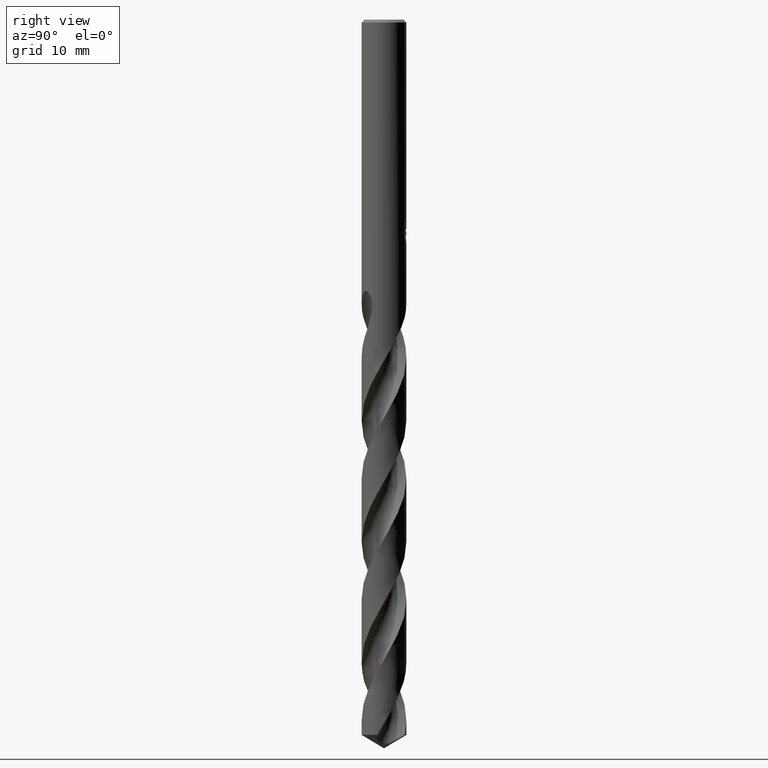
[diagram: clean part render]
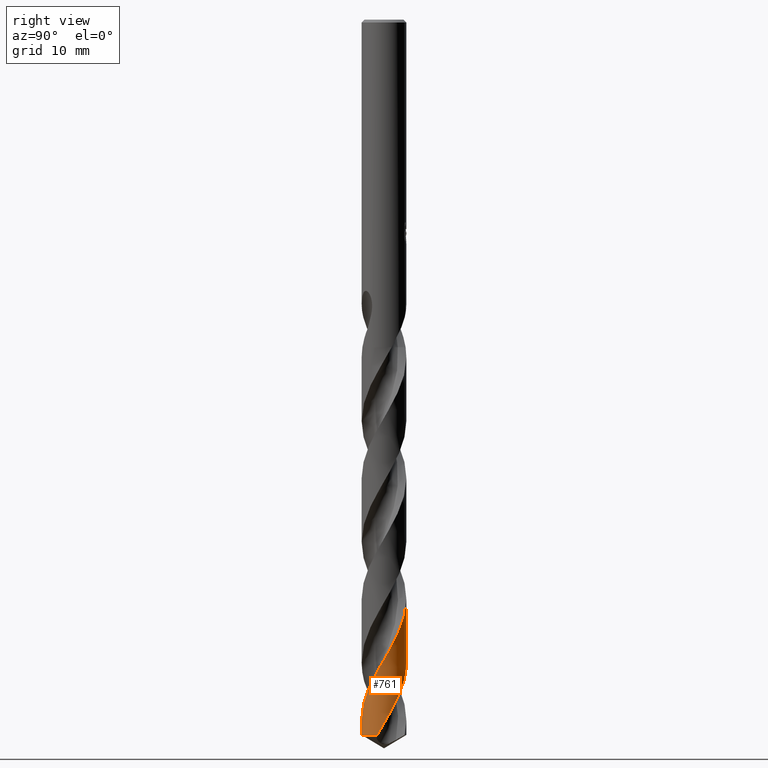
[diagram: same view with one face highlighted and labeled with its STEP entity id]
A machine part, right view. The second image highlights one B-rep face of the part: STEP entity #761.
In plain terms, the highlighted conical surface has half-angle 0 deg.
Its self-contained STEP definition (entity closure, byte-faithful):
#335=VERTEX_POINT('',#878);
#341=VERTEX_POINT('',#885);
#463=EDGE_CURVE('',#543,#335,#1018,.T.);
#465=EDGE_CURVE('',#341,#543,#1020,.T.);
#543=VERTEX_POINT('',#1103);
#589=VERTEX_POINT('',#1154);
#633=EDGE_CURVE('',#765,#335,#1200,.T.);
#673=EDGE_CURVE('',#341,#589,#1243,.T.);
#761=ADVANCED_FACE('',(#1341),#1342,.T.);
#765=VERTEX_POINT('',#1346);
#809=EDGE_CURVE('',#765,#589,#1396,.T.);
#878=CARTESIAN_POINT('',(1.77965526183685E-012,-3.09999615777495,-97.0726228446462));
#885=CARTESIAN_POINT('',(2.95963420843977,-0.922261000060777,-99.1373320810146));
#1018=LINE('',#5313,#5314);
#1020=CIRCLE('',#5317,3.1);
#1103=CARTESIAN_POINT('',(3.79627969684937E-016,-3.1,-99.1373320810146));
#1154=CARTESIAN_POINT('',(-3.29845309726225E-015,3.0999814068505,-89.1458695934188));
#1200=B_SPLINE_CURVE_WITH_KNOTS('',3,(#8628,#8629,#8630,#8631,#8632,#8633,#8634,#8635,#8636,#8637,#8638,#8639,#8640,#8641,#8642,#8643,#8644,#8645,#8646,#8647,#8648,#8649,#8650,#8651,#8652,#8653,#8654,#8655,#8656,#8657,#8658,#8659,#8660,#8661,#8662,#8663,#8664,#8665,#8666,#8667,#8668,#8669,#8670,#8671,#8672,#8673,#8674,#8675,#8676,#8677,#8678,#8679,#8680,#8681,#8682,#8683,#8684,#8685,#8686,#8687,#8688,#8689,#8690,#8691,#8692,#8693,#8694,#8695,#8696,#8697,#8698,#8699,#8700,#8701,#8702,#8703,#8704,#8705,#8706,#8707,#8708,#8709,#8710,#8711,#8712,#8713,#8714,#8715,#8716,#8717,#8718,#8719,#8720,#8721,#8722,#8723,#8724,#8725,#8726,#8727,#8728,#8729,#8730,#8731,#8732,#8733,#8734,#8735,#8736,#8737,#8738,#8739,#8740,#8741,#8742,#8743,#8744,#8745,#8746,#8747,#8748,#8749),.UNSPECIFIED.,.F.,.F.,(4,2,2,2,2,2,2,2,2,2,2,2,2,2,2,2,2,2,2,2,2,2,2,2,2,2,2,2,2,2,2,2,2,2,2,2,2,2,2,2,2,2,2,2,2,2,2,2,2,2,2,2,2,2,2,2,2,2,2,2,4),(0.0,0.060506131955498,0.65863263093856,1.71654035191651,3.02313976781123,3.33391051796659,4.35969975199793,4.95810856472654,5.58117716569292,6.64408985049069,7.83177824617176,9.29642217437958,9.87114267123397,11.182940099216,12.4301589674003,13.6072238226016,13.8728113881637,14.8724310445469,15.470786448715,16.1576803209329,17.3988130831858,18.2965226322941,19.5929501983597,20.3723488076861,21.6085637475459,22.515961991204,23.8125090140839,24.5908155832176,25.833086295099,26.7262650891694,28.0191940560933,28.8034084155651,30.0389739144062,30.9462935460853,32.2442984547946,33.0188972298283,34.2598054155209,35.1546499853136,36.4479540927449,37.2299686836224,38.4634862709973,39.3744176080609,40.6764875392884,41.9232075384595,43.0978956406625,43.3658312833164,45.3250391569788,45.3858935032299,47.1858134598638,47.7892771108387,49.0708942726636,49.8729191157139,51.1205933544538,51.9950739004344,53.2711975534111,54.081171021367,55.3258630624169,56.165226270658,57.257940417038,58.4720266366726,62.150866928561),.UNSPECIFIED.);
#1243=B_SPLINE_CURVE_WITH_KNOTS('',3,(#9249,#9250,#9251,#9252,#9253,#9254,#9255,#9256,#9257,#9258,#9259,#9260,#9261,#9262,#9263,#9264,#9265,#9266,#9267,#9268,#9269,#9270,#9271,#9272,#9273,#9274,#9275,#9276,#9277,#9278,#9279,#9280,#9281,#9282,#9283,#9284,#9285,#9286,#9287,#9288,#9289,#9290,#9291,#9292,#9293,#9294,#9295,#9296,#9297,#9298,#9299,#9300,#9301,#9302,#9303,#9304,#9305,#9306,#9307,#9308,#9309,#9310,#9311,#9312,#9313,#9314,#9315,#9316,#9317,#9318,#9319,#9320,#9321,#9322,#9323,#9324,#9325,#9326,#9327,#9328,#9329,#9330,#9331,#9332,#9333,#9334,#9335,#9336,#9337,#9338,#9339,#9340,#9341,#9342,#9343,#9344,#9345,#9346,#9347,#9348,#9349,#9350,#9351,#9352,#9353,#9354,#9355,#9356,#9357,#9358,#9359,#9360,#9361,#9362,#9363,#9364,#9365,#9366,#9367,#9368,#9369,#9370,#9371,#9372,#9373,#9374,#9375,#9376,#9377,#9378,#9379,#9380,#9381,#9382,#9383,#9384,#9385,#9386,#9387,#9388,#9389,#9390,#9391,#9392,#9393,#9394,#9395,#9396),.UNSPECIFIED.,.F.,.F.,(4,2,2,2,2,2,2,2,2,2,2,2,2,2,2,2,2,2,2,2,2,2,2,2,2,2,2,2,2,2,2,2,2,2,2,2,2,2,2,2,2,2,2,2,2,2,2,2,2,2,2,2,2,2,2,2,2,2,2,2,2,2,2,2,2,2,2,2,2,2,2,2,2,4),(0.0,1.09220484206867,1.61940484257514,2.65957104861981,3.84132351191601,4.3411164414289,5.51302304708856,7.27431135834343,7.87138222998789,8.13375630040645,8.60109015567383,9.72355251480752,11.5026094242518,12.1003057409239,12.3622042455678,12.8308837033898,13.9419191898708,14.4708223124515,14.9438098138587,16.1438942419586,17.1991408918159,18.8598670904626,19.2045496485996,20.3596172841036,20.8891561452903,21.3404353364308,22.4611596121828,22.991058697138,23.4515799309393,24.6132382543287,25.143392079691,25.591452194233,26.7221080801939,28.4771667889509,29.0775019050334,30.1066093012084,31.1266359028114,32.0026697125772,33.8008352128204,33.9569739932442,35.0330057230993,35.549276831937,36.3731964785191,37.4271295008654,37.9244595120639,38.3693337223324,39.5782543812396,40.5601549105438,41.5047502484215,41.9871332307609,42.9950936344205,44.1885138372628,44.7033456779485,45.8922363817892,47.6735764759194,48.277504191774,48.5428651347781,49.0132365105865,50.15748857609,51.9533331207832,52.5579331296495,53.6256034830827,55.0900580185428,55.4457222812782,56.6485089803203,57.6960827306477,58.9377153100825,59.8869860281048,61.3161555513256,62.0286419462188,62.3901563376374,62.5708753219254,62.6611134256654,62.7513553392391),.UNSPECIFIED.);
#1341=FACE_OUTER_BOUND('',#12073,.T.);
#1342=CONICAL_SURFACE('',#12074,3.09995,1.86090369818389E-006);
#1346=CARTESIAN_POINT('',(1.27929909419588E-013,3.09996497451355,-80.3155701096056));
#1396=LINE('',#14638,#14639);
#5313=CARTESIAN_POINT('',(3.79590282785587E-016,-3.09995,-72.2686660405073));
#5314=VECTOR('',#14969,1.0);
#5317=AXIS2_PLACEMENT_3D('',#14970,#14971,#14972);
#8628=CARTESIAN_POINT('',(-0.802706618069441,2.99416802248641,-45.4044701045762));
#8629=CARTESIAN_POINT('',(-0.792909520492816,2.99679456033113,-45.4219026909414));
#8630=CARTESIAN_POINT('',(-0.783099011453068,2.99937314931533,-45.4393320716715));
#8631=CARTESIAN_POINT('',(-0.676175685064954,3.02691646532043,-45.6290562352304));
#8632=CARTESIAN_POINT('',(-0.577939490218583,3.04719807712101,-45.8011514692261));
#8633=CARTESIAN_POINT('',(-0.303771444761752,3.09007096774963,-46.278254351839));
#8634=CARTESIAN_POINT('',(-0.12670942281363,3.10236834050888,-46.5832513036864));
#8635=CARTESIAN_POINT('',(0.26898586400158,3.0959443572038,-47.2645896682064));
#8636=CARTESIAN_POINT('',(0.48670995801499,3.06926658952671,-47.6392489675438));
#8637=CARTESIAN_POINT('',(0.750570961756927,3.00811618380898,-48.1052010816916));
#8638=CARTESIAN_POINT('',(0.800952152626527,2.99509495468321,-48.1947101950449));
#8639=CARTESIAN_POINT('',(1.01607672816995,2.93368130381992,-48.5798509186909));
#8640=CARTESIAN_POINT('',(1.17701600014156,2.87290024619255,-48.8752475617862));
#8641=CARTESIAN_POINT('',(1.4225876596553,2.75603155395277,-49.3432550035438));
#8642=CARTESIAN_POINT('',(1.51095098871396,2.70859873635282,-49.5155349644041));
#8643=CARTESIAN_POINT('',(1.68636334599465,2.60317273871106,-49.8674232168771));
#8644=CARTESIAN_POINT('',(1.7730308887997,2.54493208821284,-50.0466847609195));
#8645=CARTESIAN_POINT('',(1.9991037963478,2.37585744839798,-50.532546807772));
#8646=CARTESIAN_POINT('',(2.13221268839626,2.25716801577398,-50.8385697613775));
#8647=CARTESIAN_POINT('',(2.39095187549787,1.9830212605661,-51.4871174897067));
#8648=CARTESIAN_POINT('',(2.51321335628048,1.82558184360469,-51.8281246670846));
#8649=CARTESIAN_POINT('',(2.75064832361008,1.45035228412139,-52.5925949267497));
#8650=CARTESIAN_POINT('',(2.85677761964312,1.22821976612567,-53.0133577381176));
#8651=CARTESIAN_POINT('',(2.96655468716228,0.904600725883291,-53.6009863635032));
#8652=CARTESIAN_POINT('',(2.99321154238085,0.812047875426184,-53.7664567864742));
#8653=CARTESIAN_POINT('',(3.06642095232863,0.504768151711967,-54.310223744361));
#8654=CARTESIAN_POINT('',(3.09449429746666,0.286203346519562,-54.6875145209025));
#8655=CARTESIAN_POINT('',(3.10368575959885,-0.14251357444501,-55.4249704657648));
#8656=CARTESIAN_POINT('',(3.08702081117719,-0.351303504642011,-55.7835335627149));
#8657=CARTESIAN_POINT('',(3.01411885969063,-0.750625737450825,-56.4823580202809));
#8658=CARTESIAN_POINT('',(2.96029882801182,-0.940771999692594,-56.8207186352844));
#8659=CARTESIAN_POINT('',(2.87259316863671,-1.16606431417315,-57.2364449433874));
#8660=CARTESIAN_POINT('',(2.85555995281801,-1.20717618768185,-57.3129487251658));
#8661=CARTESIAN_POINT('',(2.77023753247185,-1.40119530030122,-57.6776313979432));
#8662=CARTESIAN_POINT('',(2.6905138538523,-1.54877319175551,-57.9656441901912));
#8663=CARTESIAN_POINT('',(2.5446552063495,-1.77321919635798,-58.4262970471439));
#8664=CARTESIAN_POINT('',(2.48598066890091,-1.85458604319274,-58.5986483282753));
#8665=CARTESIAN_POINT('',(2.35166148147439,-2.02298746564671,-58.9690809802717));
#8666=CARTESIAN_POINT('',(2.27494625005592,-2.10888468033079,-59.1667749535574));
#8667=CARTESIAN_POINT('',(2.04677778118446,-2.33740444885649,-59.722641029283));
#8668=CARTESIAN_POINT('',(1.88541887923193,-2.46941596297421,-60.0798575182116));
#8669=CARTESIAN_POINT('',(1.58657469834234,-2.66739094894967,-60.6964095521496));
#8670=CARTESIAN_POINT('',(1.45530579651344,-2.74121425925876,-60.954587622072));
#8671=CARTESIAN_POINT('',(1.12272178865765,-2.89762309629616,-61.5872487906328));
#8672=CARTESIAN_POINT('',(0.916962265350516,-2.969171465351,-61.9602897056428));
#8673=CARTESIAN_POINT('',(0.578119559750873,-3.04834795882816,-62.5587205758156));
#8674=CARTESIAN_POINT('',(0.449191133334663,-3.06999297255668,-62.7829967284858));
#8675=CARTESIAN_POINT('',(0.113314218077698,-3.1047766760573,-63.3642360846276));
#8676=CARTESIAN_POINT('',(-0.0943799359752034,-3.105419476528,-63.7201203145042));
#8677=CARTESIAN_POINT('',(-0.452034285680753,-3.07057029547319,-64.3381789781988));
#8678=CARTESIAN_POINT('',(-0.602085910922482,-3.04470120074222,-64.5991871457965));
#8679=CARTESIAN_POINT('',(-0.960373837513428,-2.9554147121217,-65.2348136325444));
#8680=CARTESIAN_POINT('',(-1.16513163743668,-2.88085707532121,-65.6079684872303));
#8681=CARTESIAN_POINT('',(-1.4777191873068,-2.72818525713895,-66.2062481226964));
#8682=CARTESIAN_POINT('',(-1.59119902396671,-2.663590897819,-66.4302605237002));
#8683=CARTESIAN_POINT('',(-1.87430329728241,-2.47789154254678,-67.0130573451244));
#8684=CARTESIAN_POINT('',(-2.03648024837598,-2.34643745379696,-67.3707496012092));
#8685=CARTESIAN_POINT('',(-2.2905530354348,-2.09414328519498,-67.9865843551085));
#8686=CARTESIAN_POINT('',(-2.38899890862833,-1.98109328025661,-68.2435724123282));
#8687=CARTESIAN_POINT('',(-2.60897397013538,-1.68814961062856,-68.8741855347347));
#8688=CARTESIAN_POINT('',(-2.72060412754624,-1.50165968986348,-69.2463845341333));
#8689=CARTESIAN_POINT('',(-2.86724561400274,-1.18568989378442,-69.8454502333633));
#8690=CARTESIAN_POINT('',(-2.91494210326962,-1.06303915846186,-70.0712030990206));
#8691=CARTESIAN_POINT('',(-3.01734738358341,-0.740384225428706,-70.6538918124378));
#8692=CARTESIAN_POINT('',(-3.06007840225791,-0.537153202304893,-71.0097407722339));
#8693=CARTESIAN_POINT('',(-3.09846705805657,-0.179829672422068,-71.6278525526117));
#8694=CARTESIAN_POINT('',(-3.10355459432093,-0.0275973143561963,-71.8889492924582));
#8695=CARTESIAN_POINT('',(-3.08872766082618,0.341740023717188,-72.5252441515364));
#8696=CARTESIAN_POINT('',(-3.05713600001861,0.557691673579839,-72.8989727726374));
#8697=CARTESIAN_POINT('',(-2.97093880736879,0.894487674099713,-73.4968570697848));
#8698=CARTESIAN_POINT('',(-2.93085511634703,1.01816307525591,-73.7198999838116));
#8699=CARTESIAN_POINT('',(-2.80672178820864,1.33240328038469,-74.3014810775734));
#8700=CARTESIAN_POINT('',(-2.71098611200557,1.51776182984151,-74.6589344723392));
#8701=CARTESIAN_POINT('',(-2.51542268388657,1.81793982035962,-75.2751184451404));
#8702=CARTESIAN_POINT('',(-2.42448744670124,1.93754846480666,-75.5326930000505));
#8703=CARTESIAN_POINT('',(-2.1818882215944,2.21271547905042,-76.164162958437));
#8704=CARTESIAN_POINT('',(-2.02177269283962,2.35992706158986,-76.5366256665039));
#8705=CARTESIAN_POINT('',(-1.74218413671919,2.56744121544662,-77.1354190419841));
#8706=CARTESIAN_POINT('',(-1.63201192513057,2.63884043696372,-77.3606356950088));
#8707=CARTESIAN_POINT('',(-1.33733513015785,2.80429447488717,-77.9423462498828));
#8708=CARTESIAN_POINT('',(-1.14724431784369,2.88728630184593,-78.2977598795058));
#8709=CARTESIAN_POINT('',(-0.804770340853619,2.99757738818978,-78.9165865360342));
#8710=CARTESIAN_POINT('',(-0.656078292059747,3.03358904449151,-79.1788306203907));
#8711=CARTESIAN_POINT('',(-0.289963153023862,3.09408595186387,-79.8176122696574));
#8712=CARTESIAN_POINT('',(-0.0713025419231356,3.10683751948047,-80.1926596046393));
#8713=CARTESIAN_POINT('',(0.355927308907154,3.08656362099483,-80.9282201007224));
#8714=CARTESIAN_POINT('',(0.563286622359553,3.05552023719995,-81.2871316993652));
#8715=CARTESIAN_POINT('',(0.956721792988229,2.95521288295043,-81.9861256395468));
#8716=CARTESIAN_POINT('',(1.14259569637083,2.88845035767984,-82.3242949910573));
#8717=CARTESIAN_POINT('',(1.36162224405712,2.7852859140672,-82.7406063471788));
#8718=CARTESIAN_POINT('',(1.40186947857389,2.76524759564063,-82.8178952883609));
#8719=CARTESIAN_POINT('',(1.73264858526298,2.5914834052905,-83.4607550931157));
#8720=CARTESIAN_POINT('',(1.99759175948037,2.39324020495775,-84.0233946215412));
#8721=CARTESIAN_POINT('',(2.23352763223923,2.14971881904536,-84.6064696006361));
#8722=CARTESIAN_POINT('',(2.2405979635434,2.14234862754596,-84.6240330188859));
#8723=CARTESIAN_POINT('',(2.45568999834941,1.9159047882661,-85.16120916071));
#8724=CARTESIAN_POINT('',(2.63068308589955,1.66753830454421,-85.67913905541));
#8725=CARTESIAN_POINT('',(2.81264063834293,1.30735300220724,-86.3730433826282));
#8726=CARTESIAN_POINT('',(2.85384767961894,1.21476736391695,-86.5471045851384));
#8727=CARTESIAN_POINT('',(2.96815593196228,0.919864160575374,-87.0915453776623));
#8728=CARTESIAN_POINT('',(3.0248293890402,0.711743469664785,-87.4609622559014));
#8729=CARTESIAN_POINT('',(3.0811870106115,0.36646018332574,-88.062639176242));
#8730=CARTESIAN_POINT('',(3.09418966067045,0.232331519992203,-88.2937856565467));
#8731=CARTESIAN_POINT('',(3.10504354016336,-0.111446043096103,-88.8858278374276));
#8732=CARTESIAN_POINT('',(3.09043538461442,-0.320917036976919,-89.2455736298393));
#8733=CARTESIAN_POINT('',(3.02981486141988,-0.67206913717208,-89.8584464875095));
#8734=CARTESIAN_POINT('',(2.99459482644209,-0.814760536042807,-90.1104303490348));
#8735=CARTESIAN_POINT('',(2.8834818920484,-1.1581447031824,-90.7316876541344));
#8736=CARTESIAN_POINT('',(2.79658528837015,-1.3546027096369,-91.0996081897887));
#8737=CARTESIAN_POINT('',(2.62247911227143,-1.65862026071519,-91.7021208435156));
#8738=CARTESIAN_POINT('',(2.54720768472676,-1.77204161032264,-91.9355967904858));
#8739=CARTESIAN_POINT('',(2.33805376782012,-2.04623359849817,-92.5291995787067));
#8740=CARTESIAN_POINT('',(2.1948374090089,-2.19916280648108,-92.8881703278091));
#8741=CARTESIAN_POINT('',(1.93102027836757,-2.42919090228375,-93.4901727297226));
#8742=CARTESIAN_POINT('',(1.81860600839849,-2.51445061682813,-93.7321121088707));
#8743=CARTESIAN_POINT('',(1.54745565537295,-2.69239112655783,-94.2903529194659));
#8744=CARTESIAN_POINT('',(1.38542851490716,-2.77924719700152,-94.605714972971));
#8745=CARTESIAN_POINT('',(1.02908949565371,-2.93129783272459,-95.2721532200837));
#8746=CARTESIAN_POINT('',(0.834176081613365,-2.99259627789956,-95.6216084604457));
#8747=CARTESIAN_POINT('',(0.0303493364957913,-3.16074423670839,-97.0355694360789));
#8748=CARTESIAN_POINT('',(-0.598487164562906,-3.10381419242127,-98.0747496215162));
#8749=CARTESIAN_POINT('',(-1.17068018211897,-2.87045430397244,-99.1373320810146));
#9249=CARTESIAN_POINT('',(2.95963420843977,-0.922261000060784,-99.1373320810146));
#9250=CARTESIAN_POINT('',(3.01374764200359,-0.748603230266731,-98.8219586066983));
#9251=CARTESIAN_POINT('',(3.05264100032437,-0.569994763401178,-98.5086065610218));
#9252=CARTESIAN_POINT('',(3.08664666044097,-0.300681387906761,-98.0421892665719));
#9253=CARTESIAN_POINT('',(3.09395952224211,-0.21260111063291,-97.8905541682616));
#9254=CARTESIAN_POINT('',(3.10449129045387,0.0497414893016859,-97.4390305880019));
#9255=CARTESIAN_POINT('',(3.09679872947348,0.224081637278233,-97.1383975689956));
#9256=CARTESIAN_POINT('',(3.04910249867223,0.593447749087161,-96.4983277838922));
#9257=CARTESIAN_POINT('',(3.00498140560717,0.786869004119283,-96.1600556702684));
#9258=CARTESIAN_POINT('',(2.91651055593255,1.05400272838362,-95.6754559676567));
#9259=CARTESIAN_POINT('',(2.88705562097778,1.13217553776643,-95.5310717667171));
#9260=CARTESIAN_POINT('',(2.77828414216573,1.38899925543644,-95.0498441109748));
#9261=CARTESIAN_POINT('',(2.68505826609825,1.56169611282548,-94.7147927391031));
#9262=CARTESIAN_POINT('',(2.41188240545784,1.96969257471844,-93.8716329302615));
#9263=CARTESIAN_POINT('',(2.2138042409091,2.18996208159764,-93.3643306563568));
#9264=CARTESIAN_POINT('',(1.91083511715907,2.44307686839985,-92.6865170373745));
#9265=CARTESIAN_POINT('',(1.83111694884452,2.50337836226016,-92.5151854183699));
#9266=CARTESIAN_POINT('',(1.71244557404574,2.58444886432101,-92.2680894875591));
#9267=CARTESIAN_POINT('',(1.67572506840528,2.60840644778183,-92.1926615340628));
#9268=CARTESIAN_POINT('',(1.57230609342406,2.67279977428426,-91.9827512643473));
#9269=CARTESIAN_POINT('',(1.50464663343751,2.71146154629956,-91.8480261285401));
#9270=CARTESIAN_POINT('',(1.26975435093377,2.83419255465623,-91.3909471231613));
#9271=CARTESIAN_POINT('',(1.09617542880243,2.90577582032378,-91.0702346510586));
#9272=CARTESIAN_POINT('',(0.632716137272038,3.04927214094142,-90.2371064422985));
#9273=CARTESIAN_POINT('',(0.337448512803226,3.09588774269531,-89.7252698465885));
#9274=CARTESIAN_POINT('',(-0.0599555012304675,3.10101242329539,-89.0429172524317));
#9275=CARTESIAN_POINT('',(-0.159846634634272,3.09746659562123,-88.87159488007));
#9276=CARTESIAN_POINT('',(-0.302935959556409,3.08545337364609,-88.6247283790109));
#9277=CARTESIAN_POINT('',(-0.346414726105063,3.08087367013278,-88.5495202259511));
#9278=CARTESIAN_POINT('',(-0.467293579973847,3.06555412700605,-88.3395924184483));
#9279=CARTESIAN_POINT('',(-0.544316791481683,3.0528157594266,-88.2046284441868));
#9280=CARTESIAN_POINT('',(-0.802042863838434,3.00013742425958,-87.7509589211034));
#9281=CARTESIAN_POINT('',(-0.979880213086137,2.94688626008384,-87.4338235367975));
#9282=CARTESIAN_POINT('',(-1.23417808360871,2.84507794441046,-86.9634681281854));
#9283=CARTESIAN_POINT('',(-1.31465156610791,2.8087925281549,-86.8119254527637));
#9284=CARTESIAN_POINT('',(-1.46377523245448,2.7337570540557,-86.5243321918217));
#9285=CARTESIAN_POINT('',(-1.53268655309247,2.69572134229279,-86.3882623928598));
#9286=CARTESIAN_POINT('',(-1.77102255641868,2.55209071040508,-85.9083196005568));
#9287=CARTESIAN_POINT('',(-1.93185272029413,2.43266482716614,-85.5664765593285));
#9288=CARTESIAN_POINT('',(-2.210760458966,2.18021913985039,-84.9203348984429));
#9289=CARTESIAN_POINT('',(-2.33078523803721,2.0513545489444,-84.6169982172741));
#9290=CARTESIAN_POINT('',(-2.60949443250397,1.69605564310116,-83.8390456215706));
#9291=CARTESIAN_POINT('',(-2.74997758358061,1.45720823290264,-83.369552887858));
#9292=CARTESIAN_POINT('',(-2.87918821129244,1.15037435120447,-82.7951104151935));
#9293=CARTESIAN_POINT('',(-2.89991642729342,1.09707728123845,-82.6962420423632));
#9294=CARTESIAN_POINT('',(-2.98381258609596,0.862288588037777,-82.2662665409092));
#9295=CARTESIAN_POINT('',(-3.03157408637658,0.675609915378935,-81.9372682627424));
#9296=CARTESIAN_POINT('',(-3.07555320812007,0.398200394755699,-81.4549055666638));
#9297=CARTESIAN_POINT('',(-3.0856272870151,0.310566486719743,-81.3034271696622));
#9298=CARTESIAN_POINT('',(-3.09734530244483,0.147898093710408,-81.0223263518132));
#9299=CARTESIAN_POINT('',(-3.10001388724669,0.0729908186126094,-80.892730321951));
#9300=CARTESIAN_POINT('',(-3.09984414891384,-0.188249820651723,-80.4422691649168));
#9301=CARTESIAN_POINT('',(-3.08294170480004,-0.374350010089255,-80.1230971297208));
#9302=CARTESIAN_POINT('',(-3.03341649070111,-0.644948662586904,-79.6506882108361));
#9303=CARTESIAN_POINT('',(-3.01383310474561,-0.730987168047225,-79.499180904765));
#9304=CARTESIAN_POINT('',(-2.97049761450123,-0.889816950950219,-79.2154725776008));
#9305=CARTESIAN_POINT('',(-2.94765388602314,-0.962783416800692,-79.0832793942691));
#9306=CARTESIAN_POINT('',(-2.85773838595036,-1.2166745023487,-78.6187868361579));
#9307=CARTESIAN_POINT('',(-2.77644020347812,-1.39232014928917,-78.2883466347265));
#9308=CARTESIAN_POINT('',(-2.63471960794842,-1.6357871145389,-77.8045232635889));
#9309=CARTESIAN_POINT('',(-2.58713175515091,-1.7100443441452,-77.6530566226298));
#9310=CARTESIAN_POINT('',(-2.49374985834206,-1.84295859752943,-77.3730462924696));
#9311=CARTESIAN_POINT('',(-2.44886325782155,-1.90219543191564,-77.2445359596938));
#9312=CARTESIAN_POINT('',(-2.2831934742254,-2.105229658627,-76.7926737388433));
#9313=CARTESIAN_POINT('',(-2.15143116311467,-2.23975567838839,-76.4710751230145));
#9314=CARTESIAN_POINT('',(-1.78547346154154,-2.55091443674807,-75.6461343858936));
#9315=CARTESIAN_POINT('',(-1.53734445582166,-2.70770395636839,-75.143358226416));
#9316=CARTESIAN_POINT('',(-1.179694388347,-2.86845337067354,-74.4701353520983));
#9317=CARTESIAN_POINT('',(-1.08665392910384,-2.90497247393932,-74.2988201122225));
#9318=CARTESIAN_POINT('',(-0.829912312368283,-2.99169622996057,-73.8329415890355));
#9319=CARTESIAN_POINT('',(-0.66369935341013,-3.03289452136938,-73.5375162487527));
#9320=CARTESIAN_POINT('',(-0.327572925923413,-3.08725144040308,-72.9516550957095));
#9321=CARTESIAN_POINT('',(-0.158257903372957,-3.10055229343026,-72.6614951479));
#9322=CARTESIAN_POINT('',(0.157060694822917,-3.09939428977994,-72.1196354885607));
#9323=CARTESIAN_POINT('',(0.302319025800224,-3.08858511992547,-71.8684521973523));
#9324=CARTESIAN_POINT('',(0.740807388066429,-3.02483915693766,-71.1046520970628));
#9325=CARTESIAN_POINT('',(1.02762219206748,-2.93974943809083,-70.5988381679382));
#9326=CARTESIAN_POINT('',(1.32118725416191,-2.80442427895655,-70.0406501746228));
#9327=CARTESIAN_POINT('',(1.34447475538888,-2.79333475972241,-69.9960565783748));
#9328=CARTESIAN_POINT('',(1.52746653204377,-2.70337105580797,-69.6439617964173));
#9329=CARTESIAN_POINT('',(1.680512613538,-2.61103543143008,-69.3382152002158));
#9330=CARTESIAN_POINT('',(1.89439451636711,-2.45525567607918,-68.8839627432613));
#9331=CARTESIAN_POINT('',(1.96156400080243,-2.40192721487618,-68.7368388138354));
#9332=CARTESIAN_POINT('',(2.12985080470413,-2.25656170038918,-68.354320562245));
#9333=CARTESIAN_POINT('',(2.22714354290747,-2.16058125892619,-68.1182961456891));
#9334=CARTESIAN_POINT('',(2.43376194110734,-1.92793542955809,-67.582425533936));
#9335=CARTESIAN_POINT('',(2.53858147644696,-1.78769237263716,-67.2832975375562));
#9336=CARTESIAN_POINT('',(2.67474570490262,-1.56913293914121,-66.8409818405892));
#9337=CARTESIAN_POINT('',(2.71552386654347,-1.49744261020075,-66.6992895079935));
#9338=CARTESIAN_POINT('',(2.78719057021376,-1.35890226018681,-66.430388796137));
#9339=CARTESIAN_POINT('',(2.81864670421654,-1.29239128737409,-66.3031767060186));
#9340=CARTESIAN_POINT('',(2.92680599285642,-1.04089904510642,-65.8311591906107));
#9341=CARTESIAN_POINT('',(2.98797456738558,-0.849629318671365,-65.4885483172089));
#9342=CARTESIAN_POINT('',(3.06462039438686,-0.494225701832906,-64.8639774407249));
#9343=CARTESIAN_POINT('',(3.08630521958354,-0.332693116975436,-64.58312943769));
#9344=CARTESIAN_POINT('',(3.10383306313103,-0.0146089891711646,-64.0341285863057));
#9345=CARTESIAN_POINT('',(3.10063929001537,0.141976176466466,-63.766129577005));
#9346=CARTESIAN_POINT('',(3.07790386915898,0.377481148575121,-63.3599112544643));
#9347=CARTESIAN_POINT('',(3.06714645842458,0.456698895960435,-63.2227112708685));
#9348=CARTESIAN_POINT('',(3.02454277033753,0.699684972673842,-62.7982155291039));
#9349=CARTESIAN_POINT('',(2.98252865753916,0.861383032778292,-62.5099495612478));
#9350=CARTESIAN_POINT('',(2.86264474026469,1.20578580462496,-61.8828737882032));
#9351=CARTESIAN_POINT('',(2.77996896965695,1.38576364504846,-61.5451508206937));
#9352=CARTESIAN_POINT('',(2.63802517589734,1.63022761710949,-61.0584559073699));
#9353=CARTESIAN_POINT('',(2.59229417855082,1.70199369208724,-60.9114183817286));
#9354=CARTESIAN_POINT('',(2.43166741712051,1.9326175146401,-60.4265528198642));
#9355=CARTESIAN_POINT('',(2.30439905456942,2.08278780476587,-60.0904988081963));
#9356=CARTESIAN_POINT('',(1.95236405822229,2.42584381396408,-59.2463695750933));
#9357=CARTESIAN_POINT('',(1.71304532410192,2.60036967314996,-58.7391019331414));
#9358=CARTESIAN_POINT('',(1.3643091252381,2.78535035010152,-58.0613351281495));
#9359=CARTESIAN_POINT('',(1.2738446883989,2.82786360691003,-57.8900032797039));
#9360=CARTESIAN_POINT('',(1.14097890427787,2.88263993947562,-57.6429130365246));
#9361=CARTESIAN_POINT('',(1.10010247823845,2.89848465854722,-57.5674919644243));
#9362=CARTESIAN_POINT('',(0.985970365299507,2.93996734912187,-57.3582496033038));
#9363=CARTESIAN_POINT('',(0.912150446490987,2.96369825934564,-57.224188747867));
#9364=CARTESIAN_POINT('',(0.655945739605909,3.03559034524316,-56.7652394509188));
#9365=CARTESIAN_POINT('',(0.469857605873327,3.06993801806016,-56.4420399617482));
#9366=CARTESIAN_POINT('',(-0.0141490674354596,3.11406893034708,-55.6074130721936));
#9367=CARTESIAN_POINT('',(-0.312039319263519,3.09842874193865,-55.0966130767266));
#9368=CARTESIAN_POINT('',(-0.701281311465252,3.02120479069357,-54.4152913420223));
#9369=CARTESIAN_POINT('',(-0.798270836805518,2.99703428184547,-54.2439592396717));
#9370=CARTESIAN_POINT('',(-1.06269937205594,2.91740187021493,-53.7691543680165));
#9371=CARTESIAN_POINT('',(-1.226708658651,2.85231754318982,-53.4647763592218));
#9372=CARTESIAN_POINT('',(-1.60066392281876,2.66566480677708,-52.7458371098365));
#9373=CARTESIAN_POINT('',(-1.80333352592364,2.53290308663976,-52.3340807379165));
#9374=CARTESIAN_POINT('',(-2.03326652966859,2.34066467702861,-51.8170093468243));
#9375=CARTESIAN_POINT('',(-2.07708784111149,2.30186829803735,-51.7158267346424));
#9376=CARTESIAN_POINT('',(-2.26456410371873,2.12615239852349,-51.2727303924262));
#9377=CARTESIAN_POINT('',(-2.39607981855099,1.97680997559337,-50.9331164976327));
#9378=CARTESIAN_POINT('',(-2.6139623177509,1.6752985585411,-50.2940521598744));
#9379=CARTESIAN_POINT('',(-2.70331251858502,1.52686806206138,-49.9954975118422));
#9380=CARTESIAN_POINT('',(-2.87025990261858,1.18864844850568,-49.3456238597662));
#9381=CARTESIAN_POINT('',(-2.94250897582265,0.996533937043694,-48.995789738596));
#9382=CARTESIAN_POINT('',(-3.0356732109689,0.647041131548802,-48.3744364792707));
#9383=CARTESIAN_POINT('',(-3.06443806731272,0.493006642660079,-48.1043608803852));
#9384=CARTESIAN_POINT('',(-3.10708885830027,0.103757228923217,-47.4298430554935));
#9385=CARTESIAN_POINT('',(-3.10598715962755,-0.132051226775946,-47.0286228884248));
#9386=CARTESIAN_POINT('',(-3.06449287438857,-0.481656561577439,-46.4219477799566));
#9387=CARTESIAN_POINT('',(-3.04417722488234,-0.596706643861192,-46.2193541453019));
#9388=CARTESIAN_POINT('',(-3.00375633171116,-0.768346880028651,-45.9153198501454));
#9389=CARTESIAN_POINT('',(-2.98846453401465,-0.825844290244977,-45.8130580258044));
#9390=CARTESIAN_POINT('',(-2.96299325580354,-0.911560293927088,-45.6597877939307));
#9391=CARTESIAN_POINT('',(-2.95408235996093,-0.940038464067543,-45.6087274604651));
#9392=CARTESIAN_POINT('',(-2.94008917909795,-0.982588253749603,-45.532200448835));
#9393=CARTESIAN_POINT('',(-2.93532388039053,-0.9967336804671,-45.5067199537678));
#9394=CARTESIAN_POINT('',(-2.92558284211801,-1.02497257400704,-45.4557681352512));
#9395=CARTESIAN_POINT('',(-2.92061337772934,-1.03904785371883,-45.4303357830083));
#9396=CARTESIAN_POINT('',(-2.9155450477647,-1.05307983610769,-45.404919886909));
#12073=EDGE_LOOP('',(#15277,#15278,#15279,#15280,#15281));
#12074=AXIS2_PLACEMENT_3D('',#15282,#15283,#15284);
#14638=CARTESIAN_POINT('',(-3.79653410520749E-016,3.09995,-72.2686660405073));
#14639=VECTOR('',#15344,1.0);
#14969=DIRECTION('',(-2.27887449264623E-022,1.86090369818281E-006,0.999999999998269));
#14970=CARTESIAN_POINT('',(0.0,0.0,-99.1373320810146));
#14971=DIRECTION('',(0.0,0.0,-1.0));
#14972=DIRECTION('',(0.0,1.0,0.0));
#15277=ORIENTED_EDGE('',*,*,#809,.F.);
#15278=ORIENTED_EDGE('',*,*,#633,.T.);
#15279=ORIENTED_EDGE('',*,*,#463,.F.);
#15280=ORIENTED_EDGE('',*,*,#465,.F.);
#15281=ORIENTED_EDGE('',*,*,#673,.T.);
#15282=CARTESIAN_POINT('',(0.0,0.0,-72.2686660405073));
#15283=DIRECTION('',(0.0,-0.0,-1.0));
#15284=DIRECTION('',(0.0,1.0,0.0));
#15344=DIRECTION('',(-2.27887449264623E-022,1.86090369818281E-006,-0.999999999998269));